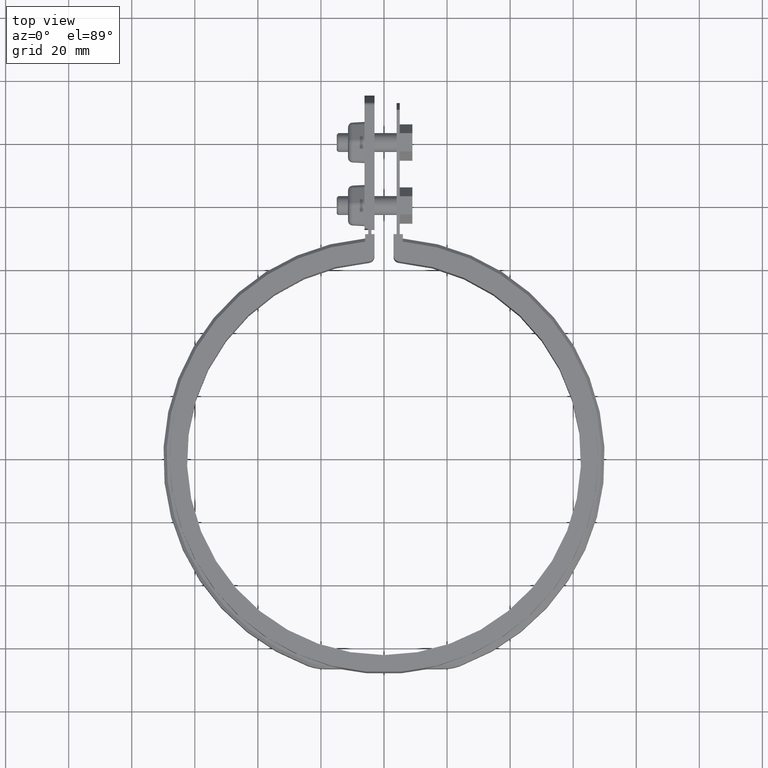
[diagram: clean part render]
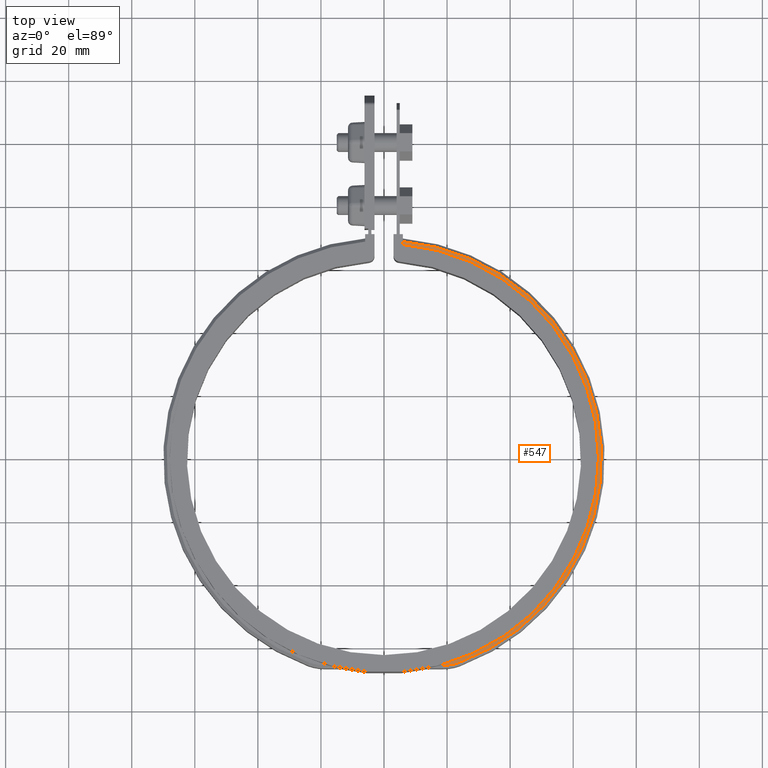
[diagram: same view with one face highlighted and labeled with its STEP entity id]
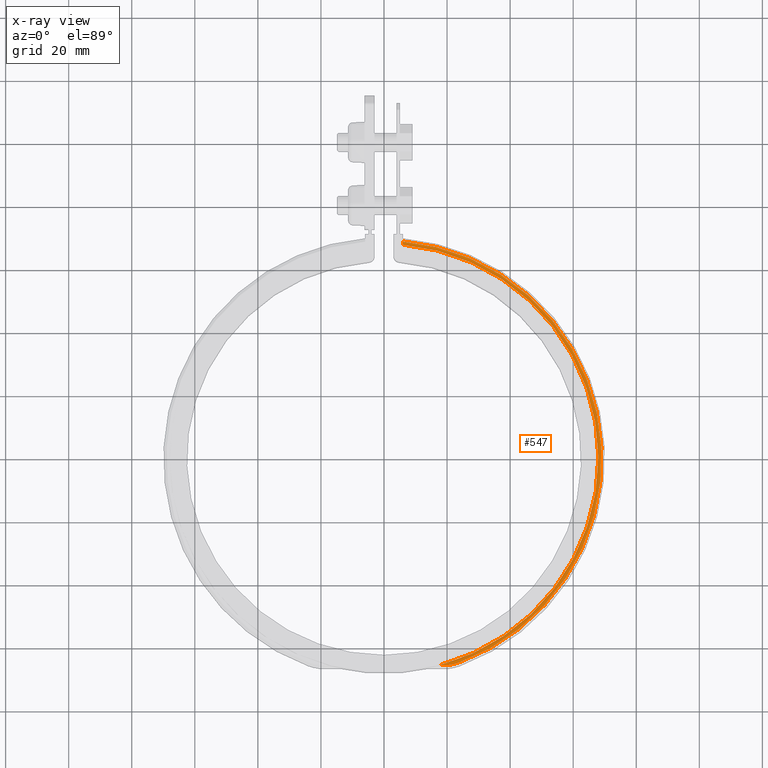
[diagram: x-ray of the same camera — body ghosted, the highlighted face saturated]
A machine part, top view. The second image highlights one B-rep face of the part: STEP entity #547.
The next image is the same camera in x-ray: the body ghosted, the highlighted face saturated — about 0% of this face is hidden behind the body in this view.
In plain terms, the highlighted planar face has unit normal (0, 0, 1).
Its self-contained STEP definition (entity closure, byte-faithful):
#547 = ADVANCED_FACE( '', ( #995 ), #996, .T. );
#995 = FACE_OUTER_BOUND( '', #2292, .T. );
#996 = PLANE( '', #2293 );
#2292 = EDGE_LOOP( '', ( #4811, #4812, #4813, #4814, #4815 ) );
#2293 = AXIS2_PLACEMENT_3D( '', #4816, #4817, #4818 );
#4811 = ORIENTED_EDGE( '', *, *, #7149, .T. );
#4812 = ORIENTED_EDGE( '', *, *, #7163, .T. );
#4813 = ORIENTED_EDGE( '', *, *, #7164, .T. );
#4814 = ORIENTED_EDGE( '', *, *, #7165, .T. );
#4815 = ORIENTED_EDGE( '', *, *, #7138, .T. );
#4816 = CARTESIAN_POINT( '', ( -8.67361737988404E-016, 0.000000000000000, 8.50000000000000 ) );
#4817 = DIRECTION( '', ( 0.000000000000000, 0.000000000000000, 1.00000000000000 ) );
#4818 = DIRECTION( '', ( 0.0714285714285714, 0.997445717412067, 0.000000000000000 ) );
#7138 = EDGE_CURVE( '', #8252, #8250, #8253, .T. );
#7149 = EDGE_CURVE( '', #8250, #8268, #8270, .F. );
#7163 = EDGE_CURVE( '', #8268, #8292, #8293, .T. );
#7164 = EDGE_CURVE( '', #8292, #8294, #8295, .T. );
#7165 = EDGE_CURVE( '', #8294, #8252, #8296, .T. );
#8250 = VERTEX_POINT( '', #11865 );
#8252 = VERTEX_POINT( '', #11868 );
#8253 = LINE( '', #11869, #11870 );
#8268 = VERTEX_POINT( '', #11894 );
#8270 = CIRCLE( '', #11896, 68.0000000000000 );
#8292 = VERTEX_POINT( '', #11921 );
#8293 = LINE( '', #11922, #11923 );
#8294 = VERTEX_POINT( '', #11924 );
#8295 = CIRCLE( '', #11925, 14.0000000000000 );
#8296 = CIRCLE( '', #11926, 69.0000000000000 );
#11865 = CARTESIAN_POINT( '', ( 6.00000000000000, 67.7347768875045, 8.50000000000000 ) );
#11868 = CARTESIAN_POINT( '', ( 6.00000000000000, 68.7386354243376, 8.50000000000000 ) );
#11869 = CARTESIAN_POINT( '', ( 6.00000000000000, 67.7347768875044, 8.50000000000000 ) );
#11870 = VECTOR( '', #13734, 1000.00000000000 );
#11894 = CARTESIAN_POINT( '', ( 17.7222318007637, -65.6500000000000, 8.50000000000000 ) );
#11896 = AXIS2_PLACEMENT_3D( '', #13750, #13751, #13752 );
#11921 = CARTESIAN_POINT( '', ( 18.9017856299346, -65.6500000000000, 8.50000000000000 ) );
#11922 = CARTESIAN_POINT( '', ( -8.67361737988404E-016, -65.6500000000000, 8.50000000000000 ) );
#11923 = VECTOR( '', #13786, 1000.00000000000 );
#11924 = CARTESIAN_POINT( '', ( 23.7131492448270, -64.7972727272727, 8.50000000000000 ) );
#11925 = AXIS2_PLACEMENT_3D( '', #13787, #13788, #13789 );
#11926 = AXIS2_PLACEMENT_3D( '', #13790, #13791, #13792 );
#13734 = DIRECTION( '', ( -8.32667268468867E-017, -1.00000000000000, 0.000000000000000 ) );
#13750 = CARTESIAN_POINT( '', ( 1.73472347597681E-015, 2.77555756156289E-014, 8.50000000000000 ) );
#13751 = DIRECTION( '', ( 0.000000000000000, 0.000000000000000, 1.00000000000000 ) );
#13752 = DIRECTION( '', ( 1.00000000000000, 0.000000000000000, 0.000000000000000 ) );
#13786 = DIRECTION( '', ( 1.00000000000000, 0.000000000000000, 0.000000000000000 ) );
#13787 = CARTESIAN_POINT( '', ( 18.9017856299346, -51.6500000000000, 8.50000000000000 ) );
#13788 = DIRECTION( '', ( 0.000000000000000, 0.000000000000000, 1.00000000000000 ) );
#13789 = DIRECTION( '', ( 1.00000000000000, 0.000000000000000, 0.000000000000000 ) );
#13790 = CARTESIAN_POINT( '', ( -8.67361737988404E-016, 0.000000000000000, 8.50000000000000 ) );
#13791 = DIRECTION( '', ( 0.000000000000000, 0.000000000000000, 1.00000000000000 ) );
#13792 = DIRECTION( '', ( 1.00000000000000, 0.000000000000000, 0.000000000000000 ) );